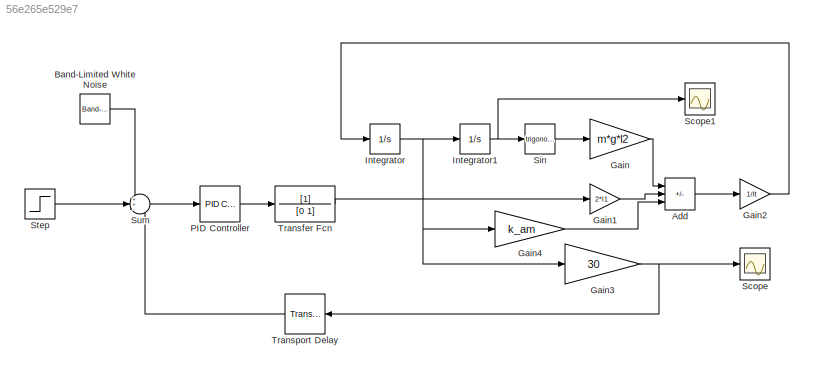
MODEL slx_56e265e529e7
KIND model
CONFIG AbsTol = auto
CONFIG EnableMultiTasking = off
CONFIG FixedStep = auto
CONFIG MaxStep = auto
CONFIG MinStep = auto
CONFIG RelTol = 1e-3
CONFIG SampleTimeConstraint = Unconstrained
CONFIG SolverName = VariableStepAuto
CONFIG StartTime = 0.0
CONFIG StopTime = 10.0
BLOCK [Sum] Add
  IconShape = rectangular
  Inputs = -+-
  Ports = [3, 1]
BLOCK [Reference] Band-Limited White Noise  REF=simulink/Sources/Band-Limited
White Noise
  Ports = [0, 1]
  SourceBlock = simulink/Sources/Band-Limited\nWhite Noise
  SourceProductBaseCode = SL
  SourceType = Band-Limited White Noise.
BLOCK [Gain] Gain
  Gain = m*g*l2
BLOCK [Gain] Gain1
  Gain = 2*l1
BLOCK [Gain] Gain2
  Gain = 1/It
BLOCK [Gain] Gain3
  Gain = 30
BLOCK [Gain] Gain4
  Gain = k_am
BLOCK [Integrator] Integrator
  Ports = [1, 1]
BLOCK [Integrator] Integrator1
  InitialCondition = 0.1
  Ports = [1, 1]
BLOCK [Reference] PID Controller  REF=pid_lib/PID Controller
  Ports = [1, 1]
  SourceBlock = pid_lib/PID Controller
  SourceProductBaseCode = SL
  SourceType = PID 1dof
BLOCK [Scope] Scope
  Floating = off
  NumInputPorts = 1
  Ports = [1]
  ScopeSpecificationString = Simulink.scopes.TimeScopeBlockCfg('CurrentConfiguration', extmgr.ConfigurationSet(extmgr.Configuration('Core','General UI',true),extmgr.Configuration('Core','Source UI',true),extmgr.Configuration('Sources','WiredSimulink',true),extmgr.Configuration('Visuals','Time Domain',true,'SerializedDisplays',{struct('MinYLimReal','-8.4704','MaxYLimReal','2.99029','YLabelReal','','MinYLimMag','0.00000','MaxYL...<+1382ch>
BLOCK [Scope] Scope1
  Floating = off
  NumInputPorts = 1
  Ports = [1]
  ScopeSpecificationString = Simulink.scopes.TimeScopeBlockCfg('CurrentConfiguration', extmgr.ConfigurationSet(extmgr.Configuration('Core','General UI',true),extmgr.Configuration('Core','Source UI',true),extmgr.Configuration('Sources','WiredSimulink',true,'DataLoggingVariableName','ScopeData1'),extmgr.Configuration('Visuals','Time Domain',true,'SerializedDisplays',{struct('MinYLimReal','-0.01185','MaxYLimReal','0.1252','YLabe...<+1400ch>
BLOCK [Trigonometry] Sin
  Ports = [1, 1]
BLOCK [Step] Step
  SampleTime = 0
BLOCK [Sum] Sum
  Inputs = ++-
  Ports = [3, 1]
BLOCK [TransferFcn] Transfer Fcn
  Denominator = [0 1]
BLOCK [TransportDelay] Transport Delay
  DelayTime = 0
  Ports = [1, 1]
LINE Add:1 -> Gain2:1
LINE Band-Limited White Noise:1 -> Sum:1
LINE Gain1:1 -> Add:2
LINE Gain2:1 -> Integrator:1
NET Gain3:1 -> Scope:1, Transport Delay:1
LINE Gain4:1 -> Add:3
LINE Gain:1 -> Add:1
NET Integrator1:1 -> Scope1:1, Sin:1
NET Integrator:1 -> Gain3:1, Gain4:1, Integrator1:1
LINE PID Controller:1 -> Transfer Fcn:1
LINE Sin:1 -> Gain:1
LINE Step:1 -> Sum:2
LINE Sum:1 -> PID Controller:1
LINE Transfer Fcn:1 -> Gain1:1
LINE Transport Delay:1 -> Sum:3
note: NET lines group one-source signal fan-out (src -> all destinations, sorted); 1:1 wires keep LINE
